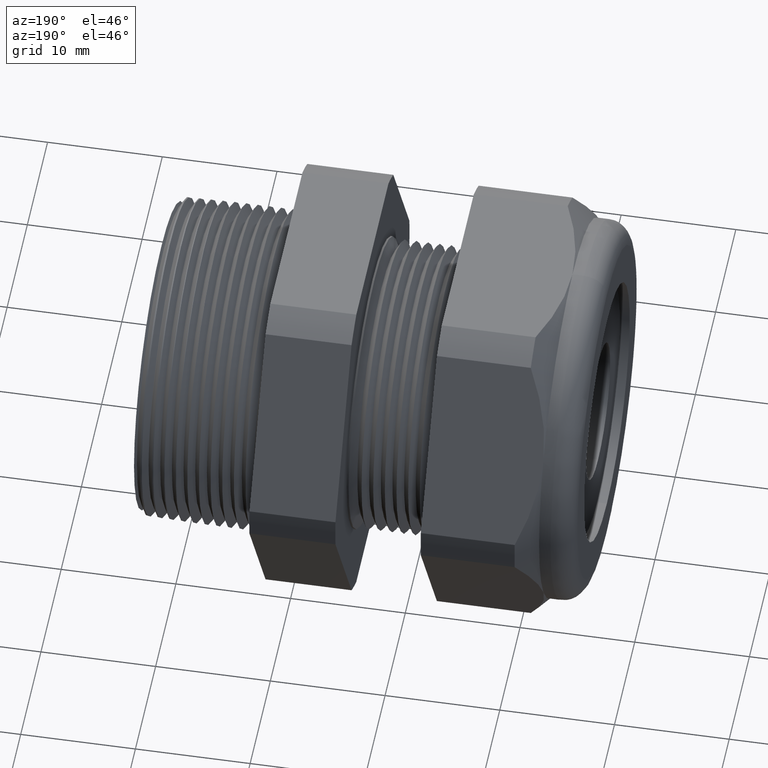
[diagram: clean part render]
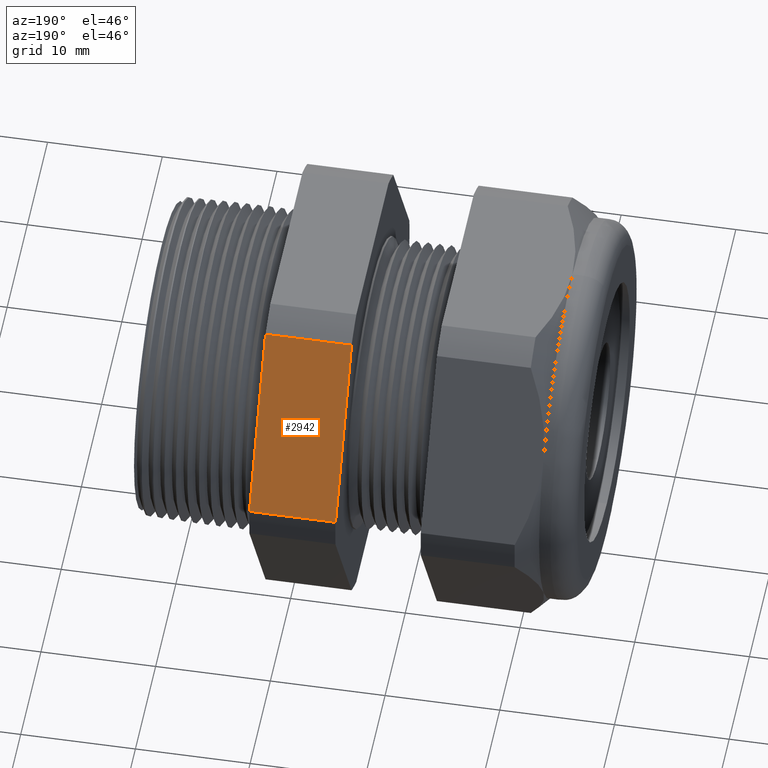
[diagram: same view with one face highlighted and labeled with its STEP entity id]
A machine part, auxiliary view. The second image highlights one B-rep face of the part: STEP entity #2942.
In plain terms, the highlighted planar face has unit normal (0, 0.866, 0.5).
Its self-contained STEP definition (entity closure, byte-faithful):
#238 = EDGE_CURVE ( 'NONE', #2070, #239, #715, .T. ) ;
#239 = VERTEX_POINT ( 'NONE', #706 ) ;
#706 = CARTESIAN_POINT ( 'NONE',  ( -0.3100000000000000000, 0.4063420493440889100, 0.5961949252843789000 ) ) ;
#707 = DIRECTION ( 'NONE',  ( 0.0000000000000000000, -0.5000000000000003300, 0.8660254037844383700 ) ) ;
#708 = VECTOR ( 'NONE', #707, 39.37007874015748100 ) ;
#709 = CARTESIAN_POINT ( 'NONE',  ( -0.3100000000000000000, 0.8879165124598856800, -0.2379165124598849900 ) ) ;
#715 = LINE ( 'NONE', #709, #708 ) ;
#850 = CARTESIAN_POINT ( 'NONE',  ( -0.3100000000000000000, 0.7194909755756818700, 0.05380507471562175100 ) ) ;
#956 = DIRECTION ( 'NONE',  ( -1.000000000000000000, 0.0000000000000000000, 0.0000000000000000000 ) ) ;
#957 = VECTOR ( 'NONE', #956, 39.37007874015748100 ) ;
#958 = CARTESIAN_POINT ( 'NONE',  ( 0.1200000000000000900, 0.7194909755756818700, 0.05380507471562175100 ) ) ;
#959 = LINE ( 'NONE', #958, #957 ) ;
#989 = DIRECTION ( 'NONE',  ( 0.0000000000000000000, -0.5000000000000003300, 0.8660254037844383700 ) ) ;
#990 = DIRECTION ( 'NONE',  ( 0.0000000000000000000, 0.8660254037844384900, 0.5000000000000004400 ) ) ;
#991 = CARTESIAN_POINT ( 'NONE',  ( 0.1200000000000000900, 0.4063420493440888500, 0.5961949252843789000 ) ) ;
#992 = AXIS2_PLACEMENT_3D ( 'NONE', #991, #990, #989 ) ;
#1000 = PLANE ( 'NONE',  #992 ) ;
#1001 = FACE_OUTER_BOUND ( 'NONE', #2930, .T. ) ;
#1002 = CARTESIAN_POINT ( 'NONE',  ( -0.6052755905511810800, 0.4063420493440889100, 0.5961949252843789000 ) ) ;
#1003 = CARTESIAN_POINT ( 'NONE',  ( -0.6052755905511810800, 0.7194909755756818700, 0.05380507471562175100 ) ) ;
#1026 = DIRECTION ( 'NONE',  ( -1.000000000000000000, 0.0000000000000000000, 0.0000000000000000000 ) ) ;
#1027 = VECTOR ( 'NONE', #1026, 39.37007874015748100 ) ;
#1028 = CARTESIAN_POINT ( 'NONE',  ( 0.1200000000000000900, 0.4063420493440889100, 0.5961949252843789000 ) ) ;
#1029 = LINE ( 'NONE', #1028, #1027 ) ;
#1197 = DIRECTION ( 'NONE',  ( 0.0000000000000000000, 0.5000000000000003300, -0.8660254037844383700 ) ) ;
#1198 = VECTOR ( 'NONE', #1197, 39.37007874015748100 ) ;
#1199 = CARTESIAN_POINT ( 'NONE',  ( -0.6052755905511809600, 0.8879165124598856800, -0.2379165124598849300 ) ) ;
#1200 = LINE ( 'NONE', #1199, #1198 ) ;
#2070 = VERTEX_POINT ( 'NONE', #850 ) ;
#2923 = EDGE_CURVE ( 'NONE', #2070, #2932, #959, .T. ) ;
#2925 = ORIENTED_EDGE ( 'NONE', *, *, #238, .F. ) ;
#2927 = ORIENTED_EDGE ( 'NONE', *, *, #2950, .F. ) ;
#2930 = EDGE_LOOP ( 'NONE', ( #2927, #2925, #2933, #3035 ) ) ;
#2932 = VERTEX_POINT ( 'NONE', #1003 ) ;
#2933 = ORIENTED_EDGE ( 'NONE', *, *, #2923, .T. ) ;
#2938 = VERTEX_POINT ( 'NONE', #1002 ) ;
#2942 = ADVANCED_FACE ( 'NONE', ( #1001 ), #1000, .T. ) ;
#2950 = EDGE_CURVE ( 'NONE', #239, #2938, #1029, .T. ) ;
#3027 = EDGE_CURVE ( 'NONE', #2938, #2932, #1200, .T. ) ;
#3035 = ORIENTED_EDGE ( 'NONE', *, *, #3027, .F. ) ;